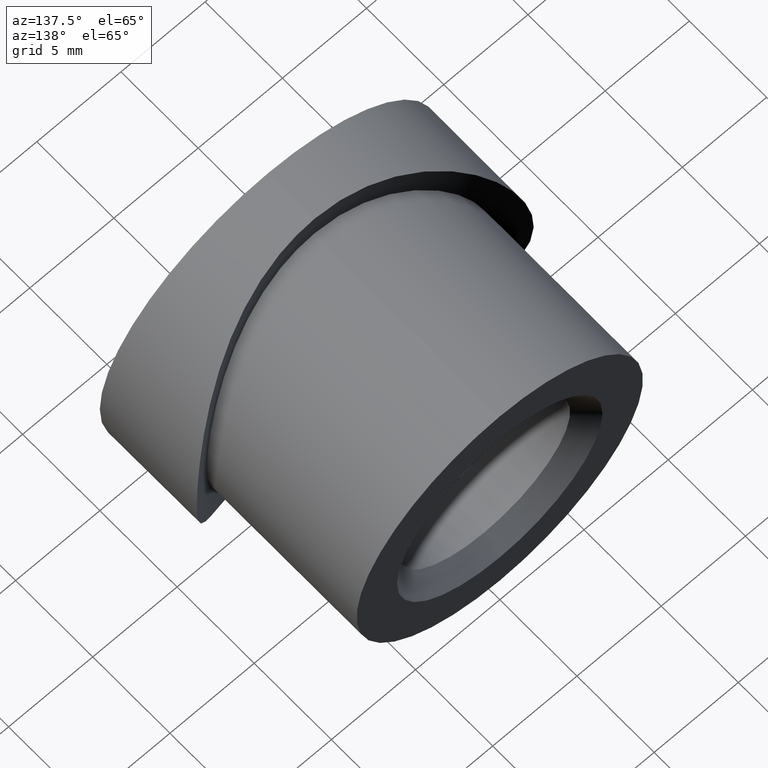
[diagram: clean part render]
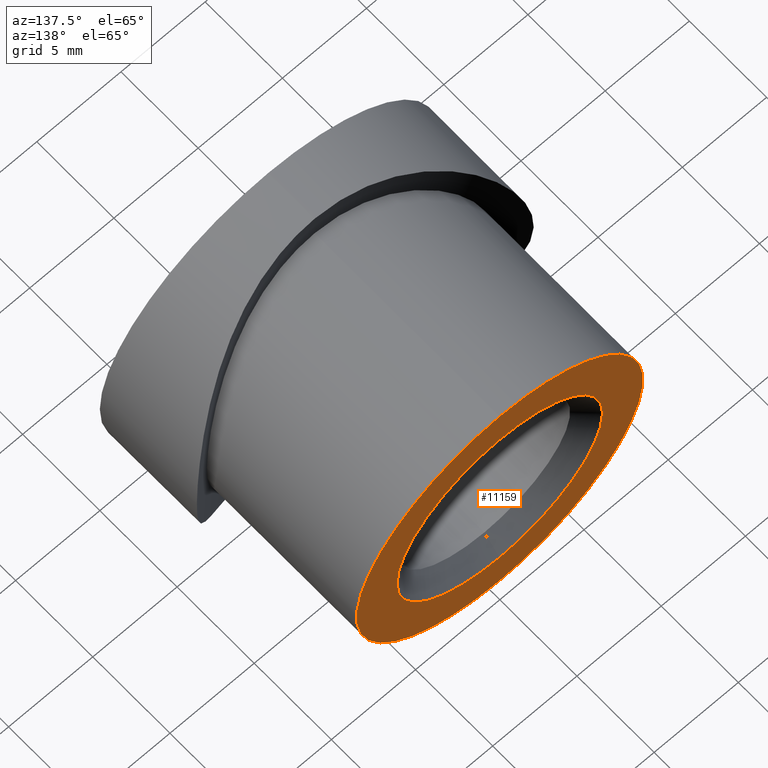
[diagram: same view with one face highlighted and labeled with its STEP entity id]
A machine part, auxiliary view. The second image highlights one B-rep face of the part: STEP entity #11159.
In plain terms, the highlighted planar face has unit normal (0, -1, 0).
Its self-contained STEP definition (entity closure, byte-faithful):
#386 = CIRCLE ( 'NONE', #13685, 6.100000000000001400 ) ;
#945 = PLANE ( 'NONE',  #9907 ) ;
#1181 = ORIENTED_EDGE ( 'NONE', *, *, #8773, .F. ) ;
#1467 = CARTESIAN_POINT ( 'NONE',  ( 0.0000000000000000000, 15.00000000000000000, 0.0000000000000000000 ) ) ;
#2234 = VERTEX_POINT ( 'NONE', #7627 ) ;
#2854 = VERTEX_POINT ( 'NONE', #8293 ) ;
#3788 = EDGE_CURVE ( 'NONE', #2234, #9365, #386, .T. ) ;
#4420 = ORIENTED_EDGE ( 'NONE', *, *, #9420, .F. ) ;
#4421 = DIRECTION ( 'NONE',  ( 0.0000000000000000000, -1.000000000000000000, 0.0000000000000000000 ) ) ;
#4983 = DIRECTION ( 'NONE',  ( 0.0000000000000000000, -1.000000000000000000, 0.0000000000000000000 ) ) ;
#5475 = ORIENTED_EDGE ( 'NONE', *, *, #3788, .T. ) ;
#6151 = CIRCLE ( 'NONE', #7178, 8.500000000000000000 ) ;
#6153 = DIRECTION ( 'NONE',  ( 0.0000000000000000000, 0.0000000000000000000, -1.000000000000000000 ) ) ;
#6555 = EDGE_CURVE ( 'NONE', #9365, #2234, #9291, .T. ) ;
#6767 = DIRECTION ( 'NONE',  ( 0.0000000000000000000, -1.000000000000000000, 0.0000000000000000000 ) ) ;
#6838 = ORIENTED_EDGE ( 'NONE', *, *, #6555, .T. ) ;
#6903 = CARTESIAN_POINT ( 'NONE',  ( 1.040949779275250100E-015, 15.00000000000000000, 8.500000000000000000 ) ) ;
#7178 = AXIS2_PLACEMENT_3D ( 'NONE', #9174, #13932, #13836 ) ;
#7600 = FACE_OUTER_BOUND ( 'NONE', #8411, .T. ) ;
#7627 = CARTESIAN_POINT ( 'NONE',  ( 0.0000000000000000000, 15.00000000000000000, 6.100000000000001400 ) ) ;
#7769 = AXIS2_PLACEMENT_3D ( 'NONE', #11922, #4983, #13108 ) ;
#8293 = CARTESIAN_POINT ( 'NONE',  ( 0.0000000000000000000, 15.00000000000000000, -8.500000000000000000 ) ) ;
#8411 = EDGE_LOOP ( 'NONE', ( #1181, #4420 ) ) ;
#8773 = EDGE_CURVE ( 'NONE', #2854, #14325, #6151, .T. ) ;
#8966 = CARTESIAN_POINT ( 'NONE',  ( 0.0000000000000000000, 15.00000000000000000, 0.0000000000000000000 ) ) ;
#9096 = CARTESIAN_POINT ( 'NONE',  ( 0.0000000000000000000, 15.00000000000000000, 0.0000000000000000000 ) ) ;
#9174 = CARTESIAN_POINT ( 'NONE',  ( 0.0000000000000000000, 15.00000000000000000, 0.0000000000000000000 ) ) ;
#9291 = CIRCLE ( 'NONE', #7769, 6.100000000000001400 ) ;
#9365 = VERTEX_POINT ( 'NONE', #12640 ) ;
#9420 = EDGE_CURVE ( 'NONE', #14325, #2854, #10508, .T. ) ;
#9907 = AXIS2_PLACEMENT_3D ( 'NONE', #9096, #4421, #12362 ) ;
#10508 = CIRCLE ( 'NONE', #12909, 8.500000000000000000 ) ;
#11159 = ADVANCED_FACE ( 'NONE', ( #14305, #7600 ), #945, .F. ) ;
#11922 = CARTESIAN_POINT ( 'NONE',  ( 0.0000000000000000000, 15.00000000000000000, 0.0000000000000000000 ) ) ;
#12362 = DIRECTION ( 'NONE',  ( 0.0000000000000000000, -0.0000000000000000000, -1.000000000000000000 ) ) ;
#12444 = EDGE_LOOP ( 'NONE', ( #5475, #6838 ) ) ;
#12640 = CARTESIAN_POINT ( 'NONE',  ( 7.470345474798857300E-016, 15.00000000000000000, -6.100000000000001400 ) ) ;
#12909 = AXIS2_PLACEMENT_3D ( 'NONE', #8966, #6767, #13634 ) ;
#13108 = DIRECTION ( 'NONE',  ( 0.0000000000000000000, 0.0000000000000000000, -1.000000000000000000 ) ) ;
#13634 = DIRECTION ( 'NONE',  ( 0.0000000000000000000, 0.0000000000000000000, -1.000000000000000000 ) ) ;
#13685 = AXIS2_PLACEMENT_3D ( 'NONE', #1467, #14249, #6153 ) ;
#13836 = DIRECTION ( 'NONE',  ( 0.0000000000000000000, 0.0000000000000000000, -1.000000000000000000 ) ) ;
#13932 = DIRECTION ( 'NONE',  ( 0.0000000000000000000, -1.000000000000000000, 0.0000000000000000000 ) ) ;
#14249 = DIRECTION ( 'NONE',  ( 0.0000000000000000000, -1.000000000000000000, 0.0000000000000000000 ) ) ;
#14305 = FACE_BOUND ( 'NONE', #12444, .T. ) ;
#14325 = VERTEX_POINT ( 'NONE', #6903 ) ;